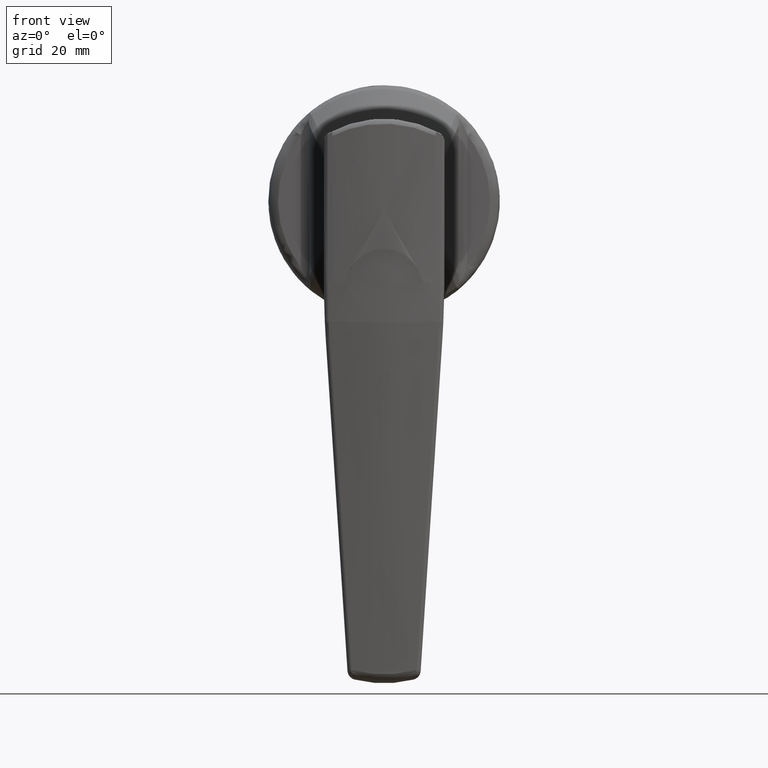
[diagram: clean part render]
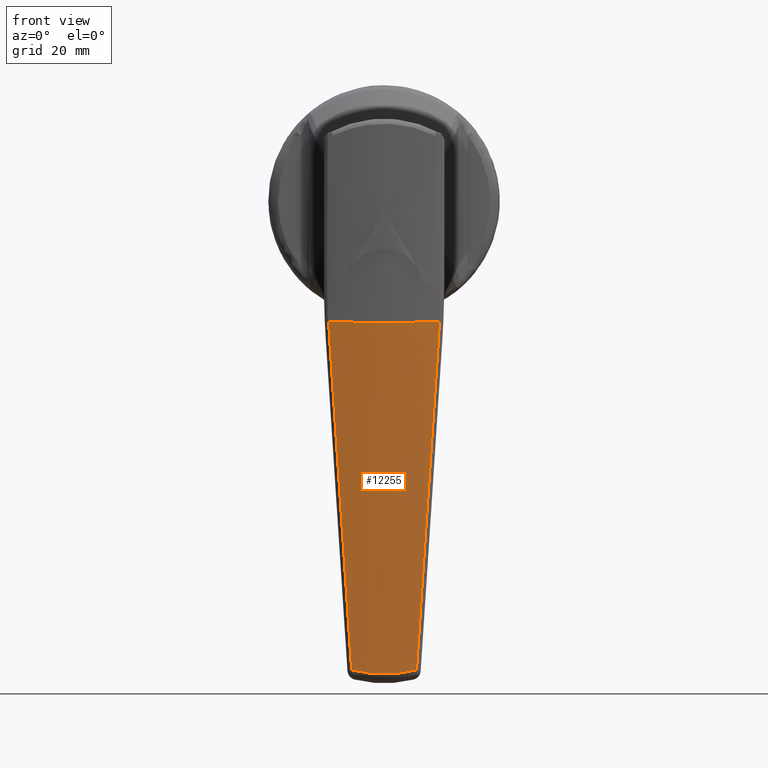
[diagram: same view with one face highlighted and labeled with its STEP entity id]
A machine part, front view. The second image highlights one B-rep face of the part: STEP entity #12255.
In plain terms, the highlighted face is a freeform B-spline surface patch.
Its self-contained STEP definition (entity closure, byte-faithful):
#6561=CARTESIAN_POINT('',(-37.843350285108812,6.721442861657440,-97.221635429455205));
#6562=VERTEX_POINT('',#6561);
#6808=CARTESIAN_POINT('',(-37.843350285108762,-6.721442861657480,-97.221635429455205));
#6809=VERTEX_POINT('',#6808);
#6817=CARTESIAN_POINT('',(-37.843350285108812,6.721442861657440,-97.221635429455205));
#6818=CARTESIAN_POINT('',(-37.942343935908319,5.625169215865836,-97.534044564430928));
#6819=CARTESIAN_POINT('',(-38.018337634325022,4.516814986065543,-97.767281904588913));
#6820=CARTESIAN_POINT('',(-38.120764619877200,2.276422541191168,-98.079988281250976));
#6821=CARTESIAN_POINT('',(-38.147213888095500,1.144385008516285,-98.159457032877555));
#6822=CARTESIAN_POINT('',(-38.147216049215537,-1.144244768731521,-98.159463559908417));
#6823=CARTESIAN_POINT('',(-38.120766742579022,-2.276364652141864,-98.079994726793331));
#6824=CARTESIAN_POINT('',(-38.018338691943342,-4.516803311401072,-97.767285168462976));
#6825=CARTESIAN_POINT('',(-37.942343958184708,-5.625168969172814,-97.534044634731913));
#6826=CARTESIAN_POINT('',(-37.843350285108812,-6.721442861657482,-97.221635429455205));
#6827=B_SPLINE_CURVE_WITH_KNOTS('',3,(#6817,#6818,#6819,#6820,#6821,#6822,#6823,#6824,#6825,#6826),.UNSPECIFIED.,.F.,.U.,(4,2,2,2,4),(0.0,0.250000000000000,0.500000000000000,0.750000000000000,1.0),.UNSPECIFIED.);
#6828=EDGE_CURVE('',#6562,#6809,#6827,.T.);
#7562=CARTESIAN_POINT('',(-42.878764277605747,-11.479719629846400,-25.101466616764949));
#7563=VERTEX_POINT('',#7562);
#7594=CARTESIAN_POINT('',(-42.878764277605747,11.479719629846400,-25.101466616764949));
#7595=VERTEX_POINT('',#7594);
#7609=CARTESIAN_POINT('',(-42.878764277605747,-11.479719629846400,-25.101466616764949));
#7610=CARTESIAN_POINT('',(-45.116384859345537,-1.335737E-013,-25.192300907368548));
#7611=CARTESIAN_POINT('',(-42.878764277605782,11.479719629846370,-25.101466616764981));
#7619=(BOUNDED_CURVE()B_SPLINE_CURVE(2,(#7609,#7610,#7611),.UNSPECIFIED.,.F.,.U.)CURVE()GEOMETRIC_REPRESENTATION_ITEM()QUASI_UNIFORM_CURVE()RATIONAL_B_SPLINE_CURVE((1.0,0.981526028015691,1.0))REPRESENTATION_ITEM(''));
#7620=EDGE_CURVE('',#7563,#7595,#7619,.T.);
#7842=CARTESIAN_POINT('',(-42.615893900489901,11.263684811303120,-28.910993423007550));
#7843=VERTEX_POINT('',#7842);
#7857=CARTESIAN_POINT('',(-42.878764277605747,11.479719629846400,-25.101466616764949));
#7858=CARTESIAN_POINT('',(-42.788812769540733,11.420094255378350,-26.371850654162511));
#7859=CARTESIAN_POINT('',(-42.701235748854337,11.348085053353520,-27.641696263652680));
#7860=CARTESIAN_POINT('',(-42.615893900489901,11.263684811303120,-28.910993423007550));
#7861=QUASI_UNIFORM_CURVE('',3,(#7857,#7858,#7859,#7860),.UNSPECIFIED.,.F.,.U.);
#7862=EDGE_CURVE('',#7595,#7843,#7861,.T.);
#7895=CARTESIAN_POINT('',(-42.615893900489901,-11.263684811303120,-28.910993423007650));
#7896=VERTEX_POINT('',#7895);
#7920=CARTESIAN_POINT('',(-42.615893900489901,-11.263684811303120,-28.910993423007650));
#7921=CARTESIAN_POINT('',(-42.701235748854337,-11.348085053353520,-27.641696263652751));
#7922=CARTESIAN_POINT('',(-42.788812769540783,-11.420094255378350,-26.371850654162539));
#7923=CARTESIAN_POINT('',(-42.878764277605796,-11.479719629846400,-25.101466616764949));
#7924=QUASI_UNIFORM_CURVE('',3,(#7920,#7921,#7922,#7923),.UNSPECIFIED.,.F.,.U.);
#7925=EDGE_CURVE('',#7896,#7563,#7924,.T.);
#8125=CARTESIAN_POINT('',(-42.615893900489901,11.263684811303120,-28.910993423007550));
#8126=CARTESIAN_POINT('',(-40.332782749299106,9.005764020021545,-62.867915545464641));
#8127=CARTESIAN_POINT('',(-37.843350285108798,6.721442861657466,-97.221635429455134));
#8135=(BOUNDED_CURVE()B_SPLINE_CURVE(2,(#8125,#8126,#8127),.UNSPECIFIED.,.F.,.U.)CURVE()GEOMETRIC_REPRESENTATION_ITEM()QUASI_UNIFORM_CURVE()RATIONAL_B_SPLINE_CURVE((1.0,0.999266857087292,1.0))REPRESENTATION_ITEM(''));
#8136=EDGE_CURVE('',#7843,#6562,#8135,.T.);
#8190=CARTESIAN_POINT('',(-37.843350285108762,-6.721442861657480,-97.221635429455205));
#8191=CARTESIAN_POINT('',(-40.332782749299028,-9.005764020021500,-62.867915545465507));
#8192=CARTESIAN_POINT('',(-42.615893900489901,-11.263684811303120,-28.910993423007650));
#8200=(BOUNDED_CURVE()B_SPLINE_CURVE(2,(#8190,#8191,#8192),.UNSPECIFIED.,.F.,.U.)CURVE()GEOMETRIC_REPRESENTATION_ITEM()QUASI_UNIFORM_CURVE()RATIONAL_B_SPLINE_CURVE((1.0,0.999266857087362,1.0))REPRESENTATION_ITEM(''));
#8201=EDGE_CURVE('',#6809,#7896,#8200,.T.);
#12233=CARTESIAN_POINT('',(-36.667663605845746,-12.599512268247643,-99.878121339456470));
#12234=CARTESIAN_POINT('',(-42.803238817942280,-12.599512268247643,-23.168838253154167));
#12235=CARTESIAN_POINT('',(-39.365767490477445,0.002734485896569,-100.093928587916650));
#12236=CARTESIAN_POINT('',(-45.501342702573972,0.002734485896569,-23.384645501614351));
#12237=CARTESIAN_POINT('',(-36.666544125904963,12.604739976983421,-99.878031798098490));
#12238=CARTESIAN_POINT('',(-42.802119338001489,12.604739976983421,-23.168748711796212));
#12246=(BOUNDED_SURFACE()B_SPLINE_SURFACE(1,2,((#12233,#12235,#12237),(#12234,#12236,#12238)),.UNSPECIFIED.,.F.,.F.,.U.)B_SPLINE_SURFACE_WITH_KNOTS((2,2),(3,3),(0.0,76.954268203899900),(0.0,25.488490266353271),.UNSPECIFIED.)GEOMETRIC_REPRESENTATION_ITEM()RATIONAL_B_SPLINE_SURFACE(((0.998829166442929,0.974166726557551,0.993961742774376),(0.998829166442929,0.974166726557551,0.993961742774376)))REPRESENTATION_ITEM('')SURFACE());
#12247=ORIENTED_EDGE('',*,*,#8136,.T.);
#12248=ORIENTED_EDGE('',*,*,#6828,.T.);
#12249=ORIENTED_EDGE('',*,*,#8201,.T.);
#12250=ORIENTED_EDGE('',*,*,#7925,.T.);
#12251=ORIENTED_EDGE('',*,*,#7620,.T.);
#12252=ORIENTED_EDGE('',*,*,#7862,.T.);
#12253=EDGE_LOOP('',(#12247,#12248,#12249,#12250,#12251,#12252));
#12254=FACE_OUTER_BOUND('',#12253,.T.);
#12255=ADVANCED_FACE('',(#12254),#12246,.T.);